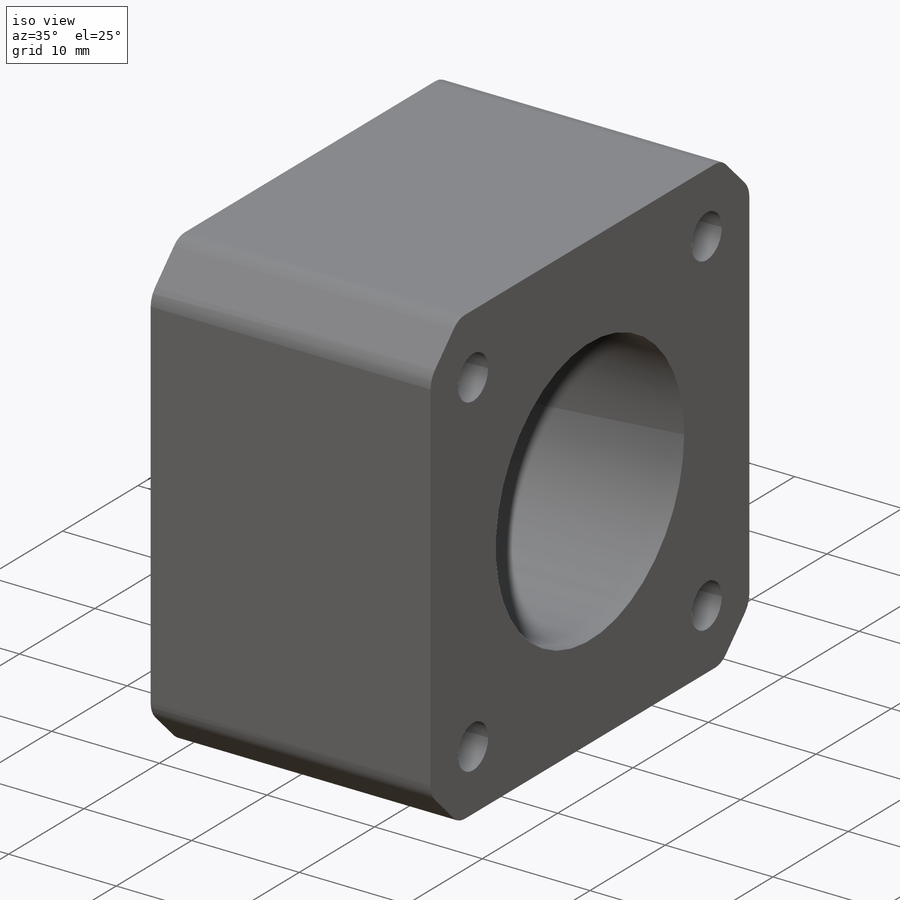
[diagram: iso view]
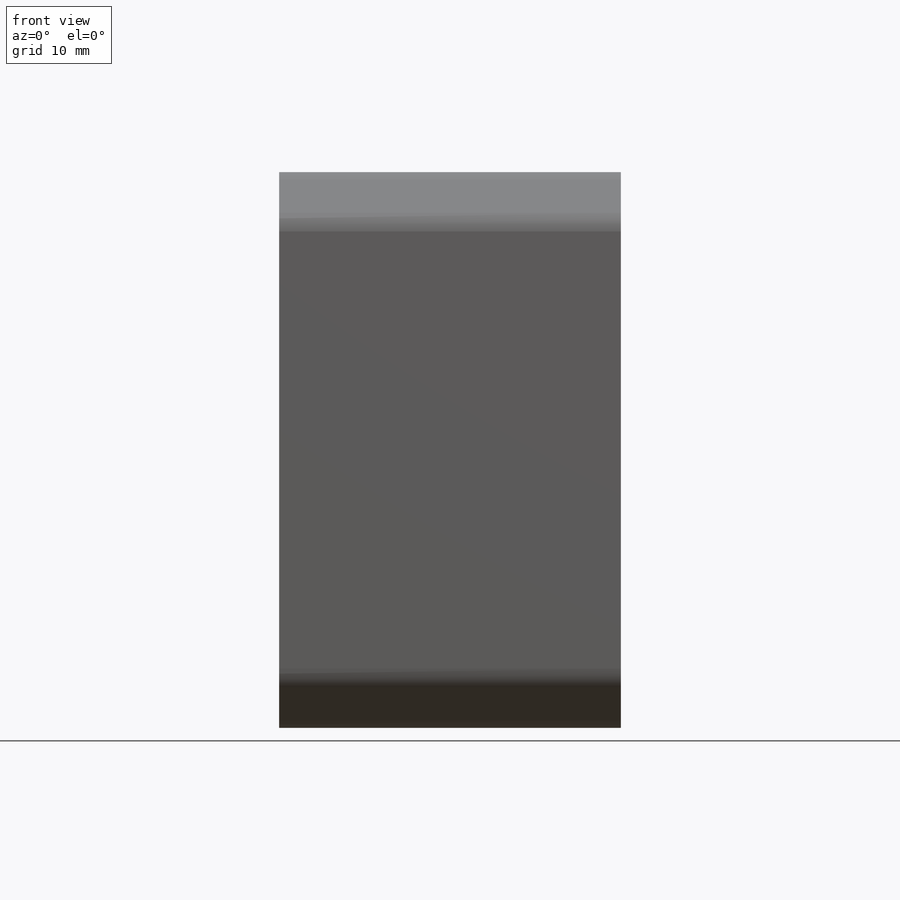
[diagram: front view]
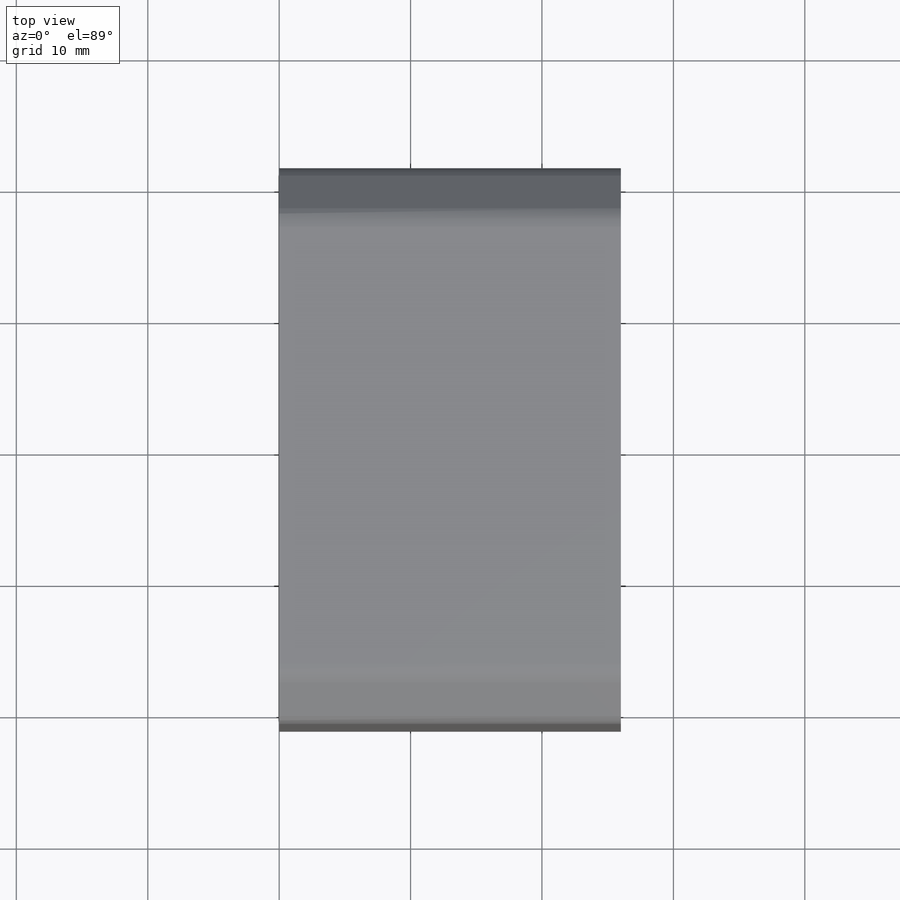
[diagram: top view]
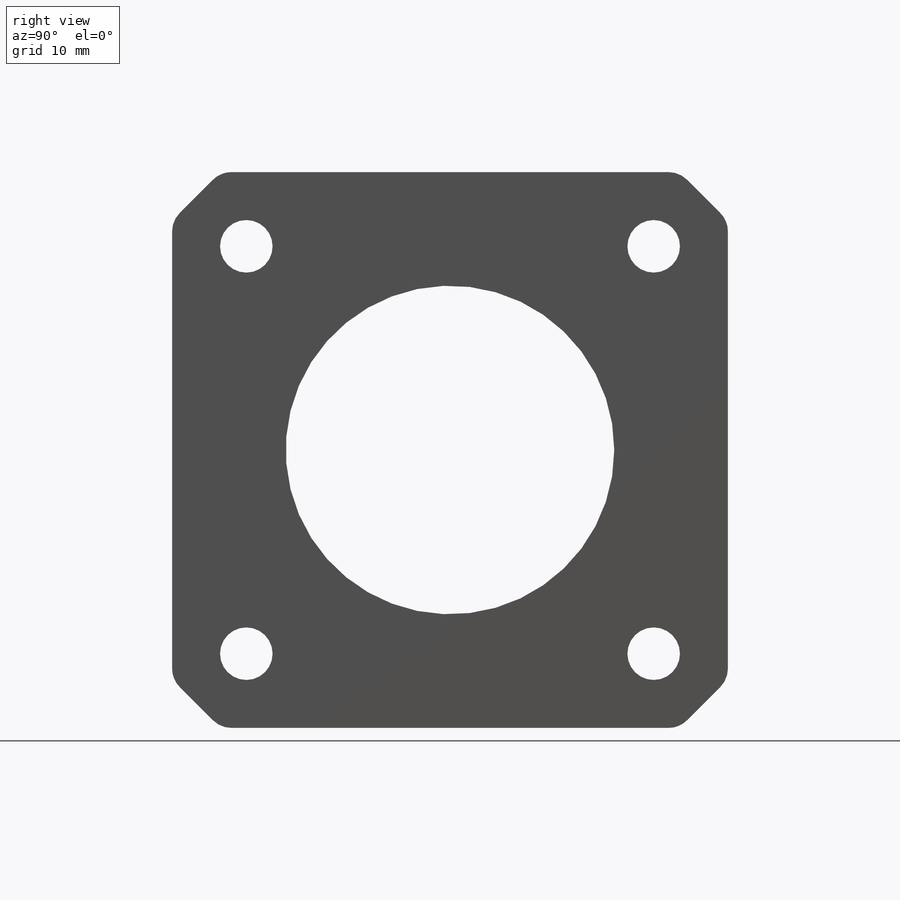
[diagram: right view]
SOLIDWORKS PART (.sldprt)
format: sldprt  version: not decoded by parser v0  size: 210,432 bytes
history: native  units: mm
features: sketch x3, cut_extrude x2, material x1, extrude x1, fillet x1, pattern_linear x1, mirror x1 (+13 scaffold rows collapsed)
feature tree (23):
  scaffold x13  (default folders/planes/origin — collapsed)
  material  "Material <not specified>"
  sketch  "Sketch1"  dims[c1.D1=35.0mm c1.D2=~26.709036mm c2.D1=~6.515082mm c3.D1=~10.036595deg c4.D1=~6.515082mm c5.D1=~10.036595deg c6.D1=42.3mm c6.D2=42.3mm c6.D3=~22.540151mm c7.D3=135.0deg c7.D4=~21.332643mm c8.D4=135.0deg c9.D4=~22.540151mm c10.D4=135.0deg c10.D5=~24.351413mm c11.D5=135.0deg c11.D6=~10.710887mm c12.D6=135.0deg c12.D7=~15.147482mm c13.D7=135.0deg c14.D7=~15.147482mm c15.D7=135.0deg c16.D7=~21.533895mm c17.D7=135.0deg c18.D7=~22.942654mm c19.D7=135.0deg c20.D7=~12.320898mm c21.D7=135.0deg c22.D7=~12.320898mm c22.D5=54.6mm c22.D6=54.6mm c23.D7=21.15mm c23.D8=21.15mm c23.D9=27.3mm c23.D10=27.3mm]
  extrude  "Boss-Extrude1"  Depth=26mm
  fillet  "Fillet1"  Radius=2mm
  sketch  "Sketch2"  dims[D1=25.0mm]
  cut_extrude  "Cut-Extrude1"  [1 undecoded]
  sketch  "Sketch3"  dims[D1=4.0mm D2=15.5mm D3=15.5mm]
  cut_extrude  "Cut-Extrude2"  [1 undecoded]
  pattern_linear  "LPattern1"  Count1=2 Count2=1 Spacing1=31mm Spacing2=10mm
  mirror  "Mirror1"
decode coverage: 6 of 9 modeling features carry decoded parameters
note: ~ marks probable driven/reference dimensions
note: 2 parameter values undecoded
note: suppression state not decoded; provenance and decode notes live in map.json
